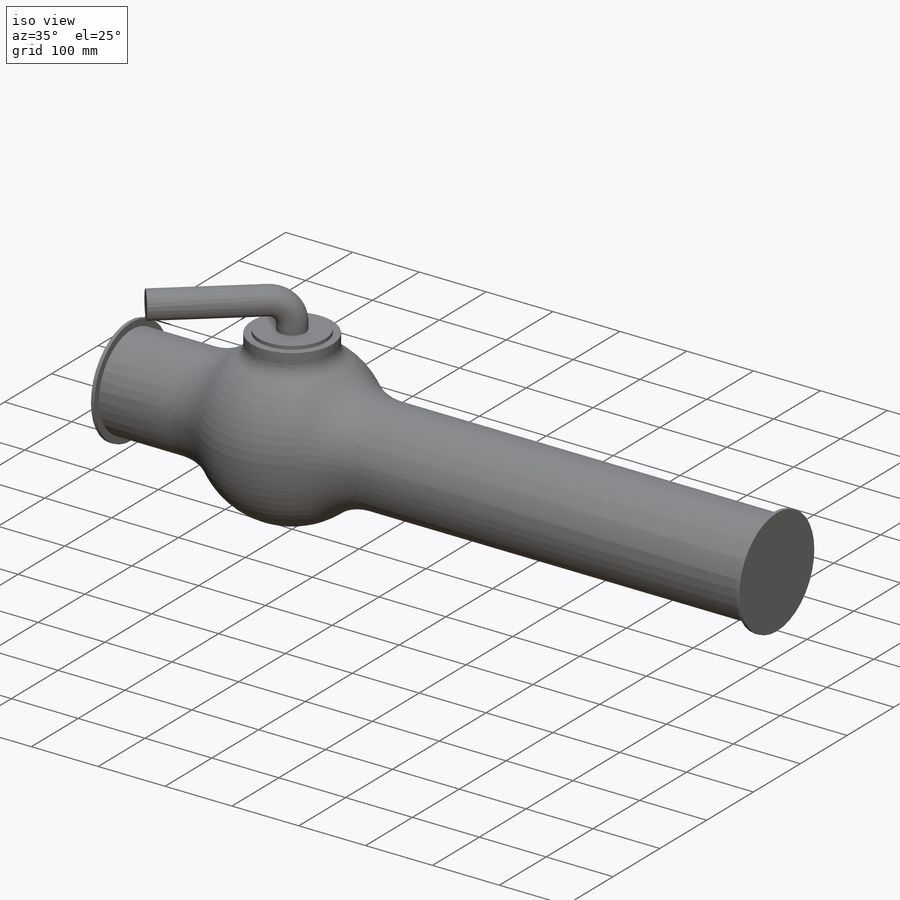
[diagram: iso view]
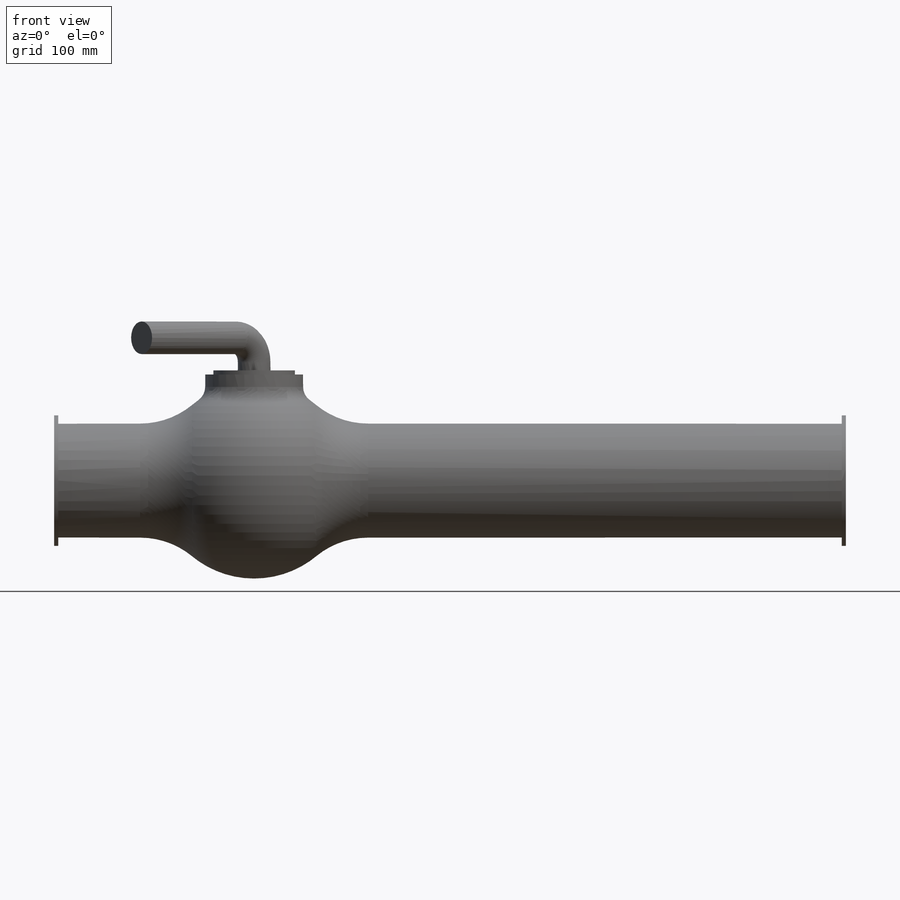
[diagram: front view]
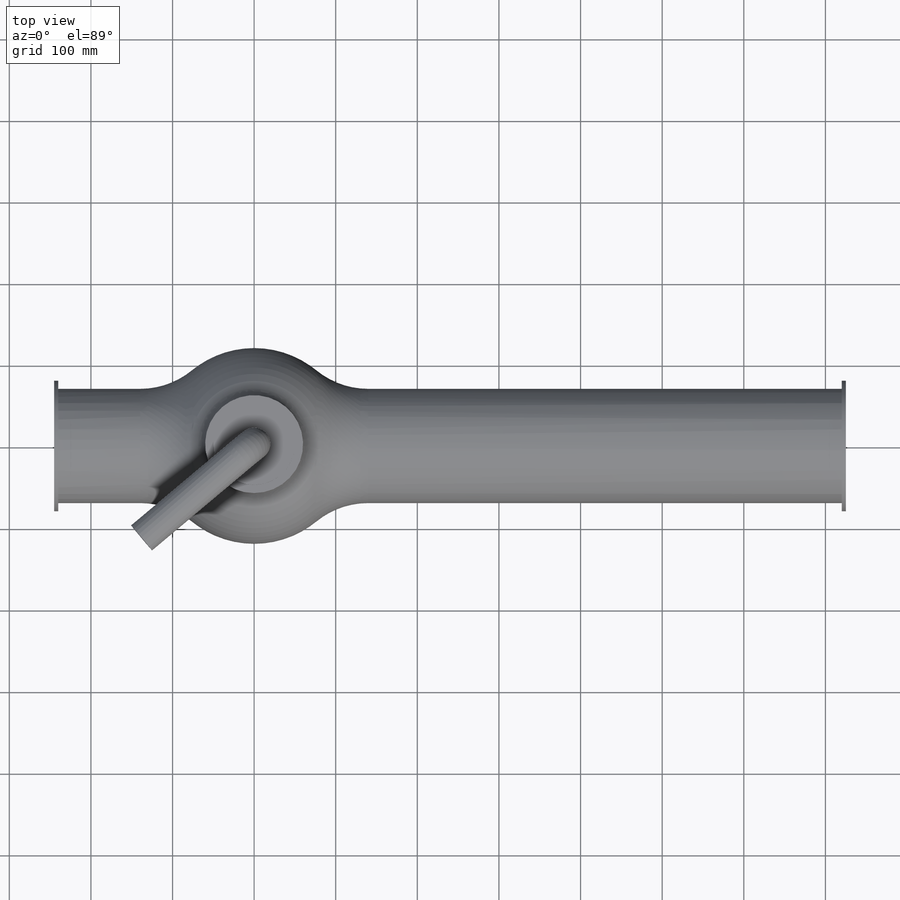
[diagram: top view]
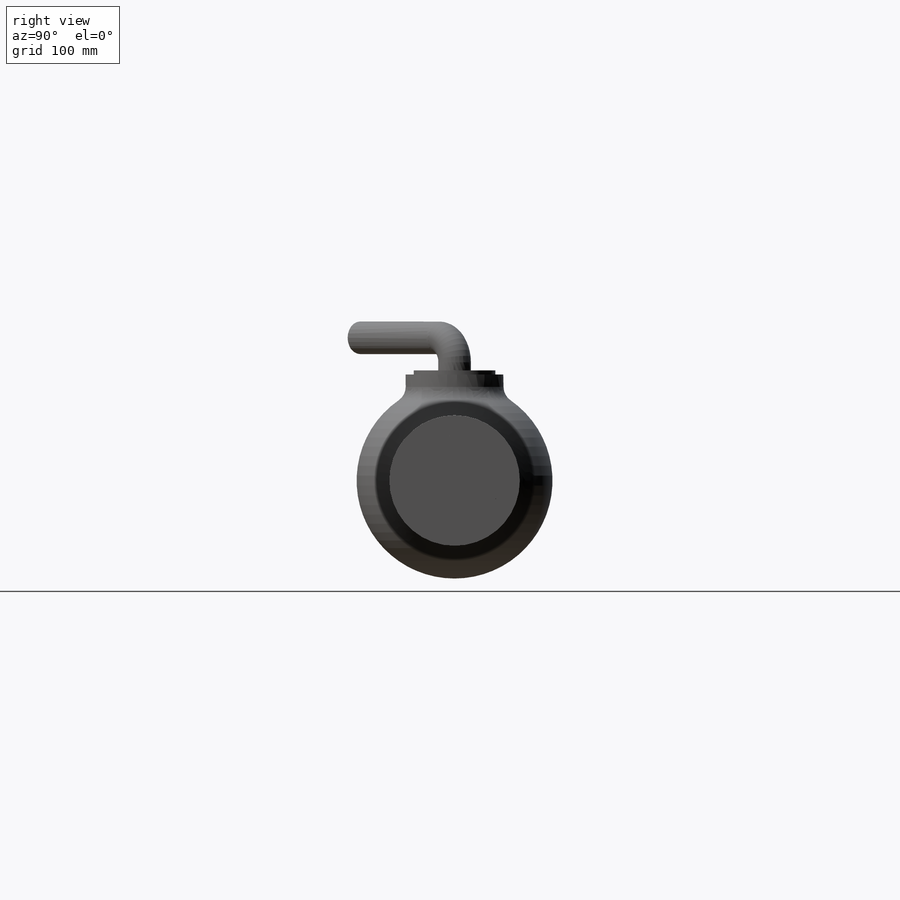
[diagram: right view]
SOLIDWORKS PART (.sldprt)
format: sldprt  version: not decoded by parser v0  size: 929,792 bytes
history: native  units: mm
features: sketch x15, extrude x8, plane x7, cut_extrude x3, revolve x2, fillet x2, sweep x1 + 3 further entries (+21 scaffold rows collapsed)
feature tree (62):
  scaffold x21  (default folders/planes/origin — collapsed)
  plane  "Plane1"  Offset=0 Index=0
  "Uuid"  Index=0
  plane  "Plane2"
  "Uuid"  Index=0
  plane  "Plane3"
  plane  "Plane5"
  sketch  "Sketch2"  dims[D1=100.0mm]
  revolve  "Base-Revolve"  Angle=360deg
  sketch  "Sketch4"
  extrude  "Boss-Extrude1"  Depth=130mm
  sketch  "Sketch3"  dims[D1=~110.387397mm]
  cut_extrude  "Cut-Extrude1"  [1 undecoded]
  sketch  "Sketch5"  dims[D1=10.0mm]
  extrude  "Boss-Extrude2"  Depth=5mm
  sketch  "Sketch6"
  plane  "Plane6"
  sketch  "Sketch7"  dims[D1=30.0mm D2=40.0mm D3=180.0mm]
  sweep  "Boss-Sweep1"
  sketch  "Sketch8"  dims[c1.D2=100.0mm c1.D3=~125.299641mm c1.D4=120.0mm c1.D1=40.0mm c2.D3=60.0mm]
  revolve  "Boss-Revolve1"  Angle=360deg
  plane  "Plane7"  Offset=772.711779mm
  sketch  "Sketch10"  dims[D1=~110.387397mm]
  cut_extrude  "Cut-Extrude6"  [1 undecoded]
  sketch  "Sketch12"  dims[D1=~110.387397mm D2=140.0mm]
  extrude  "Boss-Extrude3"  [1 undecoded]
  plane  "Plane8"  Offset=220.774794mm
  sketch  "Sketch13"  dims[D1=~110.387397mm]
  cut_extrude  "Cut-Extrude7"  [1 undecoded]
  sketch  "Sketch14"  dims[D1=~110.387397mm D2=140.0mm]
  extrude  "Boss-Extrude4"  [1 undecoded]
  sketch  "Sketch15"  dims[D1=10.0mm]
  extrude  "Boss-Extrude5"  Depth=5mm
  sketch  "Sketch16"  dims[D1=10.0mm]
  extrude  "Boss-Extrude6"  Depth=5mm
  fillet  "Fillet1"  Radius=100mm
  fillet  "Fillet2"  Radius=20mm
  sketch  "Sketch17"
  extrude  "Boss-Extrude7"  Depth=5mm
  sketch  "Sketch18"
  extrude  "Boss-Extrude8"  Depth=5mm
  "Uuid"  Index=1
decode coverage: 21 of 31 modeling features carry decoded parameters; 3 rows unclassified (native names shown)
note: ~ marks probable driven/reference dimensions
note: 5 parameter values undecoded
summary: [note 2] (x6 features) parser:v0:name_prior (class ref resolved by constrained assignment + name prior) | no parameter record found for 5 features
note: suppression state not decoded; provenance and decode notes live in map.json
